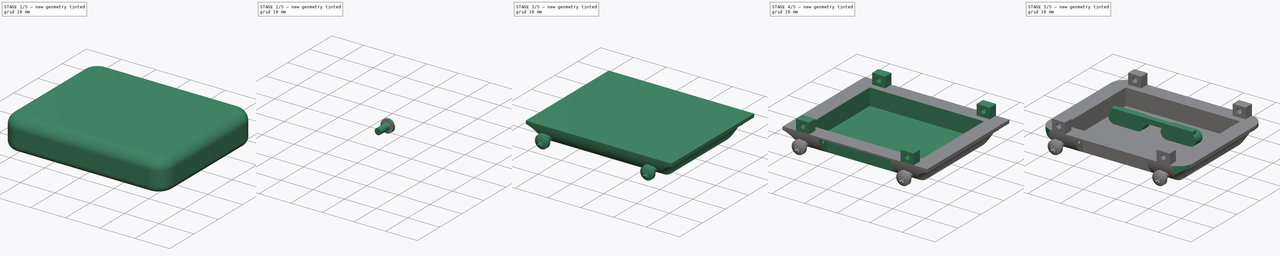
[diagram: build sequence overview — one tinted view per stage of 5, left to right]
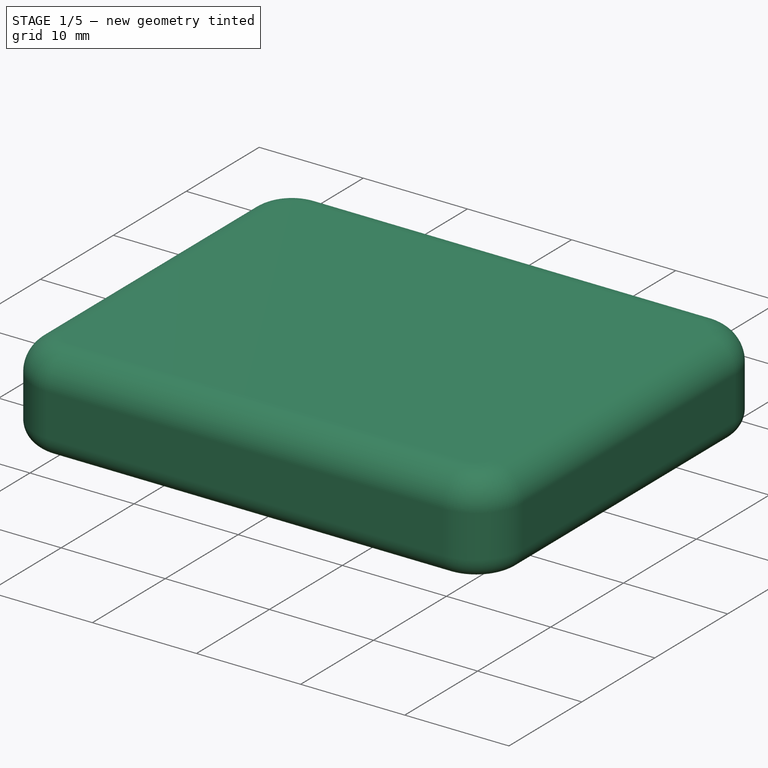
[diagram: stage 1 of 5 — iso view after this stage's code; geometry added in this stage tinted green]
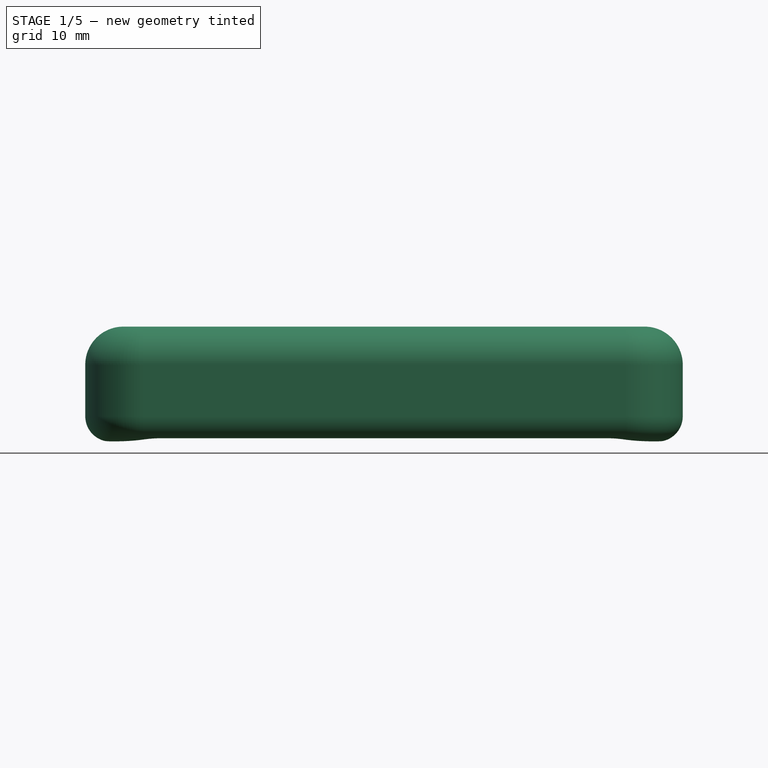
[diagram: stage 1 of 5 — front view after this stage's code; geometry added in this stage tinted green]
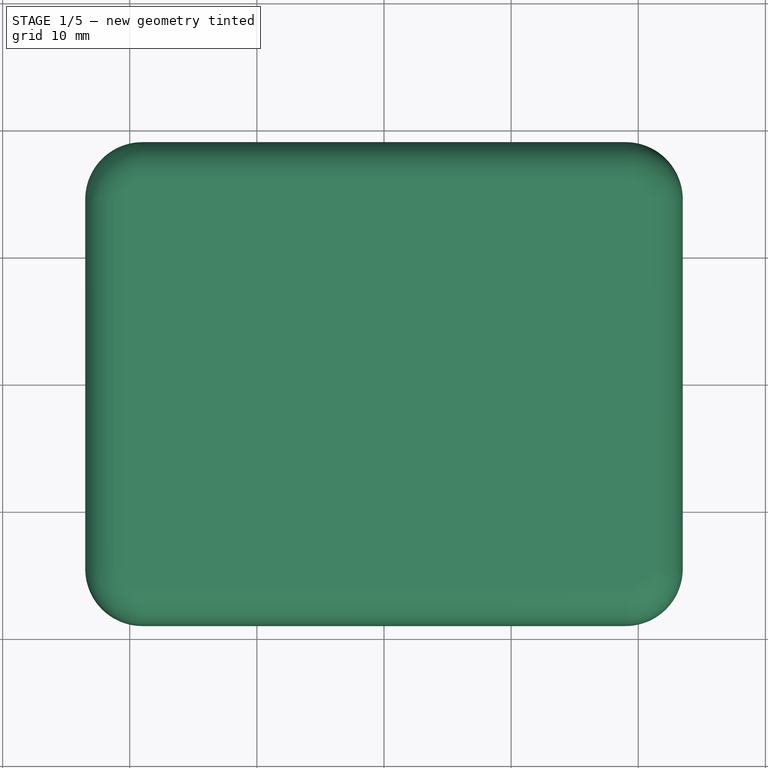
[diagram: stage 1 of 5 — top view after this stage's code; geometry added in this stage tinted green]
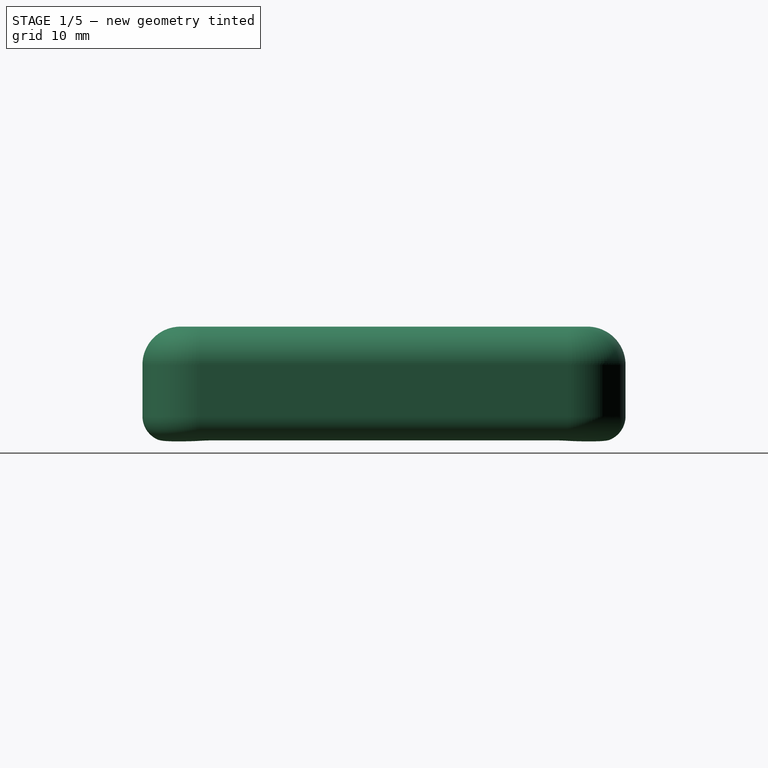
[diagram: stage 1 of 5 — right view after this stage's code; geometry added in this stage tinted green]
FCSTD DOCUMENT  (FreeCAD 0.21R33656 (Git))
Label: QPaper Smartwatch
License: All rights reserved
LicenseURL: http://en.wikipedia.org/wiki/All_rights_reserved
objects: Sketcher::SketchObject×16, Part::Feature×11, PartDesign::Pocket×11, App::Part×7, PartDesign::Pad×5, PartDesign::Mirrored×5, Part::FeaturePython×4, PartDesign::Fillet×3, PartDesign::SubShapeBinder×3, PartDesign::Body×3, App::DocumentObjectGroup×2, PartDesign::MultiTransform×1, Image::ImagePlane×1
note: 81 computed .brp shape members not serialized (recipe doc carries the construction recipe); baked Part::Feature solids carry a one-line shape summary decoded from their .brp

FEATURE [Part::Feature] Part__Feature  label="XS"
  Placement = pos=(-5.33584,-4.7419,-0.203296) rot=(0,1,0;1.5708rad)
  shape: bbox 37.3 x 1.6 x 31.8 mm, 11 faces (baked)
FEATURE [Part::Feature] Part__Feature001  label="PCB"
  Placement = pos=(0,-6.3,0) rot=(0.707107,0,0.707107;3.14159rad)
  shape: bbox 42.81 x 3.2 x 35.3 mm, 50 faces (baked)
FEATURE [Part::Feature] Part__Feature002  label="PCB"
  Placement = pos=(0,-6.3,0) rot=(0.707107,0,0.707107;3.14159rad)
  shape: bbox 8.8 x 3 x 7.6 mm, 19 faces (baked)
FEATURE [App::Part] PCB
  Group = -> [Part__Feature001,Part__Feature002]
  Origin = -> Origin
  Placement = pos=(-0.509713,0.374059,-0.227708) rot=(0,0,1;0rad)
FEATURE [App::Part] __A_ASM  label="T-Wrist E-Paper"
  Group = -> [Part__Feature,PCB]
  Origin = -> Origin001
  Placement = pos=(0.432902,0.296704,5.13057) rot=(1,0,0;1.5708rad)
FEATURE [Sketcher::SketchObject] Sketch
  FullyConstrained = true
  MapMode = 5
  Support = -> [XY_Plane003]
  sketch-geometry (13):
    g0: LineSegment StartX=-23.5 StartY=14.5 StartZ=0 EndX=-23.5 EndY=-14.5 EndZ=0
    g1: LineSegment StartX=-19 StartY=-19 StartZ=0 EndX=19 EndY=-19 EndZ=0
    g2: LineSegment StartX=23.5 StartY=-14.5 StartZ=0 EndX=23.5 EndY=14.5 EndZ=0
    g3: LineSegment StartX=19 StartY=19 StartZ=0 EndX=-19 EndY=19 EndZ=0
    g4: GeomPoint X=0 Y=0 Z=0
    g5: ArcOfCircle CenterX=-19 CenterY=14.5 CenterZ=0 NormalX=0 NormalY=0 NormalZ=1 AngleXU=0 Radius=4.5 StartAngle=1.5708 EndAngle=3.14159
    g6: GeomPoint X=-23.5 Y=19 Z=0
    g7: ArcOfCircle CenterX=19 CenterY=14.5 CenterZ=0 NormalX=0 NormalY=0 NormalZ=1 AngleXU=0 Radius=4.5 StartAngle=1e-16 EndAngle=1.5708
    g8: GeomPoint X=23.5 Y=19 Z=0
    g9: ArcOfCircle CenterX=19 CenterY=-14.5 CenterZ=0 NormalX=0 NormalY=0 NormalZ=1 AngleXU=0 Radius=4.5 StartAngle=4.71239 EndAngle=6.28319
    g10: GeomPoint X=23.5 Y=-19 Z=0
    g11: ArcOfCircle CenterX=-19 CenterY=-14.5 CenterZ=0 NormalX=0 NormalY=0 NormalZ=1 AngleXU=0 Radius=4.5 StartAngle=3.14159 EndAngle=4.71239
    g12: GeomPoint X=-23.5 Y=-19 Z=0
  constraints (28):
    c: Horizontal(g1)
    c: Horizontal(g3)
    c: Vertical(g0)
    c: Vertical(g2)
    c: Symmetric(g10,g6,g4)
    c: Coincident(g4,g-1)
    c: Distance(g8,g6) = 47
    c: Distance(g12,g6) = 38
    c: PointOnObject(g6,g0)
    c: PointOnObject(g6,g3)
    c: Tangent(g0,g5) = -1.5708
    c: Tangent(g3,g5) = -1.5708
    c: PointOnObject(g8,g2)
    c: PointOnObject(g8,g3)
    c: Tangent(g2,g7) = -1.5708
    c: Tangent(g3,g7) = -1.5708
    c: PointOnObject(g10,g1)
    c: PointOnObject(g10,g2)
    c: Tangent(g1,g9) = -1.5708
    c: Tangent(g2,g9) = -1.5708
    c: PointOnObject(g12,g0)
    c: PointOnObject(g12,g1)
    c: Tangent(g0,g11) = -1.5708
    c: Tangent(g1,g11) = -1.5708
    c: Equal(g5,g11)
    c: Equal(g5,g9)
    c: Equal(g5,g7)
    c: Radius(g5) = 4.5
FEATURE [PartDesign::Pad] Pad
  Direction = (0,0,1)
  Length = 2.75
  Length2 = 6.3
  Profile = -> Sketch
  ReferenceAxis = -> Sketch [N_Axis]
  Refine = true
  Type = 4
FEATURE [PartDesign::Fillet] Fillet
  Base = -> Pad [Face10]
  BaseFeature = -> Pad
  Radius = 3
  Refine = true
  SupportTransform = false
  UseAllEdges = false
FEATURE [PartDesign::Fillet] Fillet001
  Base = -> Fillet [Face4]
  BaseFeature = -> Fillet
  Radius = 2
  Refine = true
  SupportTransform = false
  UseAllEdges = false
FEATURE [Sketcher::SketchObject] Sketch001
  FullyConstrained = true
  MapMode = 5
  Support = -> [XY_Plane003]
  sketch-geometry (13):
    g0: LineSegment StartX=-22.125 StartY=13.5 StartZ=0 EndX=-22.125 EndY=-13.5 EndZ=0
    g1: LineSegment StartX=-17.625 StartY=-18 StartZ=0 EndX=17.625 EndY=-18 EndZ=0
    g2: LineSegment StartX=22.125 StartY=-13.5 StartZ=0 EndX=22.125 EndY=13.5 EndZ=0
    g3: LineSegment StartX=17.625 StartY=18 StartZ=0 EndX=-17.625 EndY=18 EndZ=0
    g4: GeomPoint X=0 Y=0 Z=0
    g5: ArcOfCircle CenterX=-17.625 CenterY=13.5 CenterZ=0 NormalX=0 NormalY=0 NormalZ=1 AngleXU=0 Radius=4.5 StartAngle=1.5708 EndAngle=3.14159
    g6: GeomPoint X=-22.125 Y=18 Z=0
    g7: ArcOfCircle CenterX=-17.625 CenterY=-13.5 CenterZ=0 NormalX=0 NormalY=0 NormalZ=1 AngleXU=0 Radius=4.5 StartAngle=3.14159 EndAngle=4.71239
    g8: GeomPoint X=-22.125 Y=-18 Z=0
    g9: ArcOfCircle CenterX=17.625 CenterY=-13.5 CenterZ=0 NormalX=0 NormalY=0 NormalZ=1 AngleXU=0 Radius=4.5 StartAngle=4.71239 EndAngle=6.28319
    g10: GeomPoint X=22.125 Y=-18 Z=0
    g11: ArcOfCircle CenterX=17.625 CenterY=13.5 CenterZ=0 NormalX=0 NormalY=0 NormalZ=1 AngleXU=0 Radius=4.5 StartAngle=0 EndAngle=1.5708
    g12: GeomPoint X=22.125 Y=18 Z=0
  constraints (28):
    c: Horizontal(g1)
    c: Horizontal(g3)
    c: Vertical(g0)
    c: Vertical(g2)
    c: Symmetric(g10,g6,g4)
    c: Coincident(g4,g-1)
    c: Distance(g12,g6) = 44.25
    c: Distance(g8,g6) = 36
    c: PointOnObject(g6,g0)
    c: PointOnObject(g6,g3)
    c: Tangent(g0,g5) = -1.5708
    c: Tangent(g3,g5) = -1.5708
    c: PointOnObject(g8,g0)
    c: PointOnObject(g8,g1)
    c: Tangent(g0,g7) = -1.5708
    c: Tangent(g1,g7) = -1.5708
    c: PointOnObject(g10,g1)
    c: PointOnObject(g10,g2)
    c: Tangent(g1,g9) = -1.5708
    c: Tangent(g2,g9) = -1.5708
    c: PointOnObject(g12,g2)
    c: PointOnObject(g12,g3)
    c: Tangent(g2,g11) = -1.5708
    c: Tangent(g3,g11) = -1.5708
    c: Equal(g5,g7)
    c: Equal(g5,g9)
    c: Equal(g5,g11)
    c: Radius(g5) = 4.5
FEATURE [PartDesign::Pocket] Pocket
  BaseFeature = -> Fillet001
  Direction = (0,0,-1)
  Length = 8
  Length2 = 1.25
  Profile = -> Sketch001
  ReferenceAxis = -> Sketch001 [N_Axis]
  Refine = true
  Type = 4
FEATURE [Sketcher::SketchObject] Sketch002
  FullyConstrained = true
  MapMode = 5
  Support = -> [XY_Plane003]
  sketch-geometry (5):
    g0: LineSegment StartX=-21.35 StartY=16.1 StartZ=0 EndX=-21.35 EndY=-16.1 EndZ=0
    g1: LineSegment StartX=-21.35 StartY=-16.1 StartZ=0 EndX=21.35 EndY=-16.1 EndZ=0
    g2: LineSegment StartX=21.35 StartY=-16.1 StartZ=0 EndX=21.35 EndY=16.1 EndZ=0
    g3: LineSegment StartX=21.35 StartY=16.1 StartZ=0 EndX=-21.35 EndY=16.1 EndZ=0
    g4: GeomPoint X=0 Y=0 Z=0
  constraints (12):
    c: Coincident(g0,g1)
    c: Coincident(g1,g2)
    c: Coincident(g2,g3)
    c: Coincident(g3,g0)
    c: Horizontal(g1)
    c: Horizontal(g3)
    c: Vertical(g0)
    c: Vertical(g2)
    c: Symmetric(g1,g0,g4)
    c: Coincident(g4,g-1)
    c: Distance(g3) = 42.7
    c: Distance(g0) = 32.2
FEATURE [PartDesign::Pocket] Pocket001
  BaseFeature = -> Pocket
  Direction = (0,0,-1)
  Length = 2.15
  Length2 = 5
  Profile = -> Sketch002
  ReferenceAxis = -> Sketch002 [N_Axis]
  Refine = true
  Reversed = true
  Type = 0
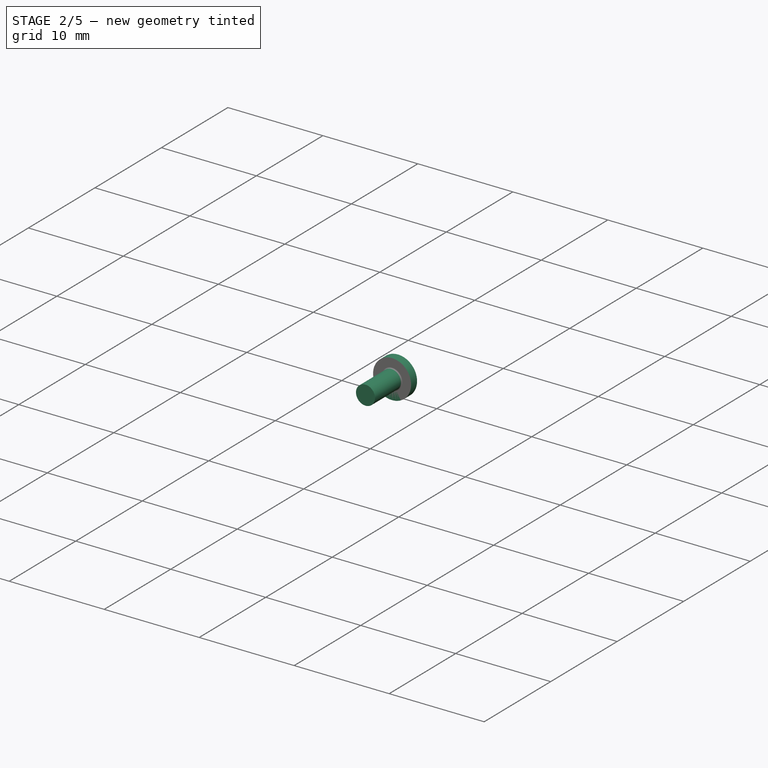
[diagram: stage 2 of 5 — iso view after this stage's code; geometry added in this stage tinted green]
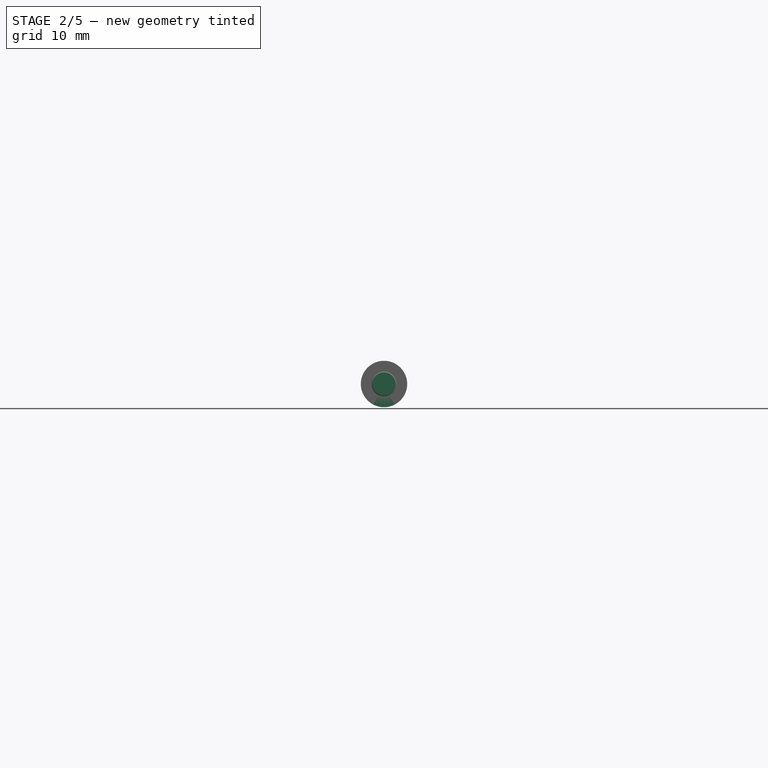
[diagram: stage 2 of 5 — front view after this stage's code; geometry added in this stage tinted green]
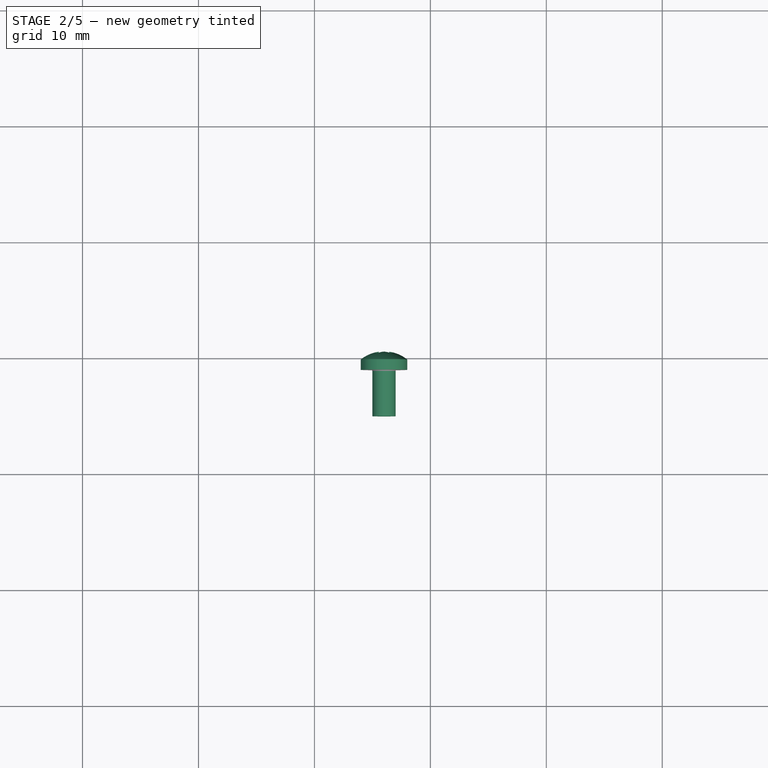
[diagram: stage 2 of 5 — top view after this stage's code; geometry added in this stage tinted green]
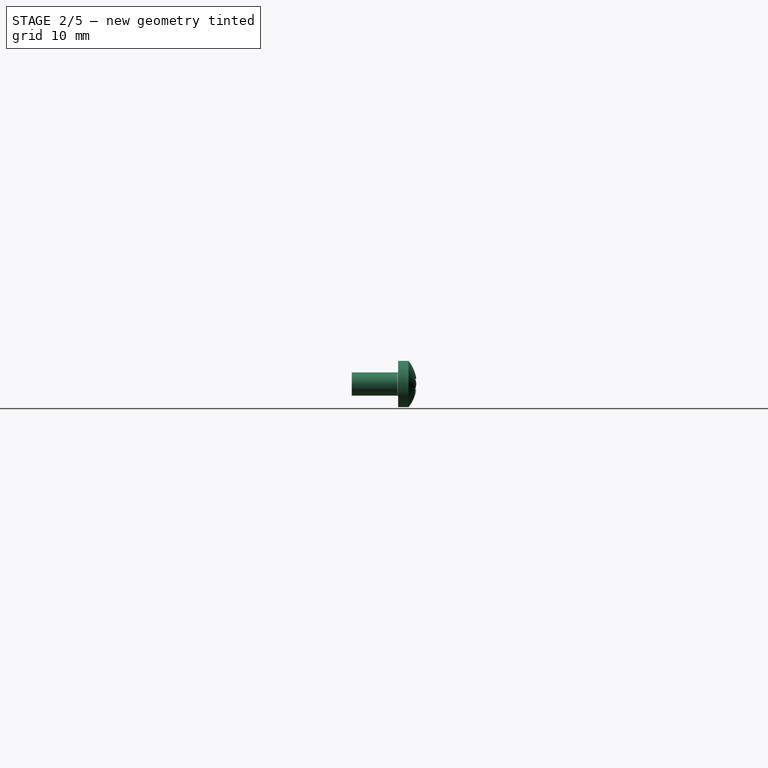
[diagram: stage 2 of 5 — right view after this stage's code; geometry added in this stage tinted green]
FEATURE [Sketcher::SketchObject] Sketch003
  FullyConstrained = true
  MapMode = 5
  Support = -> [XY_Plane003]
  sketch-geometry (5):
    g0: LineSegment StartX=-19.5 StartY=14.5 StartZ=0 EndX=-19.5 EndY=-14.5 EndZ=0
    g1: LineSegment StartX=-19.5 StartY=-14.5 StartZ=0 EndX=9.5 EndY=-14.5 EndZ=0
    g2: LineSegment StartX=9.5 StartY=-14.5 StartZ=0 EndX=9.5 EndY=14.5 EndZ=0
    g3: LineSegment StartX=9.5 StartY=14.5 StartZ=0 EndX=-19.5 EndY=14.5 EndZ=0
    g4: GeomPoint X=-5 Y=0 Z=0
  constraints (13):
    c: Coincident(g0,g1)
    c: Coincident(g1,g2)
    c: Coincident(g2,g3)
    c: Coincident(g3,g0)
    c: Horizontal(g1)
    c: Horizontal(g3)
    c: Vertical(g0)
    c: Vertical(g2)
    c: Symmetric(g1,g0,g4)
    c: PointOnObject(g4,g-1)
    c: Distance(g-1,g4) = 5
    c: Distance(g3) = 29
    c: Equal(g3,g0)
FEATURE [PartDesign::Pocket] Pocket002
  BaseFeature = -> Pocket001
  Direction = (0,0,-1)
  Length = 5
  Length2 = 5
  Profile = -> Sketch003
  ReferenceAxis = -> Sketch003 [N_Axis]
  Refine = true
  Reversed = true
  Type = 1
FEATURE [Sketcher::SketchObject] Sketch004
  FullyConstrained = true
  MapMode = 5
  Placement = pos=(0,0,0) rot=(1,0,0;1.5708rad)
  Support = -> [XZ_Plane003]
  sketch-geometry (9):
    g0: LineSegment StartX=-4.5 StartY=-2.9 StartZ=0 EndX=-4.5 EndY=-6.9 EndZ=0
    g1: LineSegment StartX=-4.5 StartY=-6.9 StartZ=0 EndX=4.5 EndY=-6.9 EndZ=0
    g2: LineSegment StartX=4.5 StartY=-6.9 StartZ=0 EndX=4.5 EndY=-2.9 EndZ=0
    g3: LineSegment StartX=3.5 StartY=-1.9 StartZ=0 EndX=-3.5 EndY=-1.9 EndZ=0
    g4: GeomPoint X=0 Y=-4.4 Z=0
    g5: ArcOfCircle CenterX=-3.5 CenterY=-2.9 CenterZ=0 NormalX=0 NormalY=0 NormalZ=1 AngleXU=0 Radius=1 StartAngle=1.5708 EndAngle=3.14159
    g6: GeomPoint X=-4.5 Y=-1.9 Z=0
    g7: ArcOfCircle CenterX=3.5 CenterY=-2.9 CenterZ=0 NormalX=0 NormalY=0 NormalZ=1 AngleXU=0 Radius=1 StartAngle=1e-16 EndAngle=1.5708
    g8: GeomPoint X=4.5 Y=-1.9 Z=0
  constraints (21):
    c: Coincident(g0,g1)
    c: Coincident(g1,g2)
    c: Horizontal(g1)
    c: Horizontal(g3)
    c: Vertical(g0)
    c: Vertical(g2)
    c: Symmetric(g1,g6,g4)
    c: PointOnObject(g4,g-2)
    c: PointOnObject(g6,g0)
    c: PointOnObject(g6,g3)
    c: Tangent(g0,g5) = -1.5708
    c: Tangent(g3,g5) = -1.5708
    c: PointOnObject(g8,g2)
    c: PointOnObject(g8,g3)
    c: Tangent(g2,g7) = -1.5708
    c: Tangent(g3,g7) = -1.5708
    c: Equal(g5,g7)
    c: Radius(g5) = 1
    c: Distance(g1) = 9
    c: DistanceY(g0,g3) = 5
    c: DistanceY(g3,g-1) = 1.9
FEATURE [PartDesign::Pocket] Pocket003
  BaseFeature = -> Pocket002
  Direction = (0,1,2e-16)
  Length = 5
  Length2 = 5
  Profile = -> Sketch004
  ReferenceAxis = -> Sketch004 [N_Axis]
  Refine = true
  Reversed = true
  Type = 1
FEATURE [Sketcher::SketchObject] Sketch006
  FullyConstrained = true
  MapMode = 5
  Placement = pos=(0,0,0) rot=(1,0,0;1.5708rad)
  Support = -> [XZ_Plane003]
  sketch-geometry (4):
    g0: ArcOfCircle CenterX=-11.5 CenterY=-1.6 CenterZ=0 NormalX=0 NormalY=0 NormalZ=1 AngleXU=0 Radius=2 StartAngle=1.5708 EndAngle=4.71239
    g1: ArcOfCircle CenterX=-4.5 CenterY=-1.6 CenterZ=0 NormalX=0 NormalY=0 NormalZ=1 AngleXU=0 Radius=2 StartAngle=4.71239 EndAngle=7.85398
    g2: LineSegment StartX=-11.5 StartY=-3.6 StartZ=0 EndX=-4.5 EndY=-3.6 EndZ=0
    g3: LineSegment StartX=-4.5 StartY=0.4 StartZ=0 EndX=-11.5 EndY=0.4 EndZ=0
  constraints (10):
    c: Tangent(g0,g2) = -1.5708
    c: Tangent(g2,g1) = -1.5708
    c: Tangent(g1,g3) = -1.5708
    c: Tangent(g3,g0) = -1.5708
    c: Equal(g0,g1)
    c: Horizontal(g2)
    c: Distance(g0,g1) = 7
    c: Radius(g1) = 2
    c: DistanceX(g1,g-1) = 4.5
    c: DistanceY(g1,g-1) = 1.6
FEATURE [PartDesign::Pocket] Pocket005
  BaseFeature = -> Pocket003
  Direction = (0,1,2e-16)
  Length = 5
  Length2 = 5
  Profile = -> Sketch006
  ReferenceAxis = -> Sketch006 [N_Axis]
  Refine = true
  Type = 1
FEATURE [PartDesign::Mirrored] Mirrored
  BaseFeature = -> Pocket005
  MirrorPlane = -> Sketch006 [V_Axis]
  Originals = -> [Pocket005]
  Refine = true
FEATURE [Part::Feature] Part__Feature003  label="PebbleSolid-20130102"
  shape: bbox 1.8 x 1.8 x 24.2 mm, 38 faces (baked)
FEATURE [Part::Feature] Part__Feature004  label="PebbleSolid-20130102"
  shape: bbox 128.4 x 4.871 x 23.51 mm, 243 faces (baked)
FEATURE [App::Part] Strap_Lower  label="Strap Lower"
  Group = -> [Part__Feature003,Part__Feature004]
  Origin = -> Origin009
  Placement = pos=(2e-15,8.5,-5) rot=(-0.57735,0.57735,0.57735;4.18879rad)
FEATURE [Part::Feature] Part__Feature005  label="PebbleSolid-20130102"
  shape: bbox 1.8 x 1.8 x 24.2 mm, 38 faces (baked)
FEATURE [Part::Feature] Part__Feature006  label="PebbleSolid-20130102"
  shape: bbox 10 x 9.536 x 26.64 mm, 34 faces (baked)
FEATURE [Part::Feature] Part__Feature007  label="PebbleSolid-20130102"
  shape: bbox 17.22 x 7.996 x 25.01 mm, 81 faces (baked)
FEATURE [Part::Feature] Part__Feature008  label="PebbleSolid-20130102"
  shape: bbox 73.14 x 6.141 x 22 mm, 51 faces (baked)
FEATURE [Part::Feature] Part__Feature009  label="PebbleSolid-20130102"
  shape: bbox 16.82 x 4.419 x 3 mm, 46 faces (baked)
FEATURE [Part::Feature] Part__Feature010  label="PebbleSolid-20130102"
  shape: bbox 1.8 x 1.8 x 24.2 mm, 38 faces (baked)
FEATURE [App::Part] Strap_Upper  label="Strap Upper"
  Group = -> [Part__Feature005,Part__Feature006,Part__Feature007,Part__Feature008,Part__Feature009,Part__Feature010]
  Origin = -> Origin010
  Placement = pos=(-8e-16,-4,-5) rot=(-0.57735,0.57735,0.57735;4.18879rad)
FEATURE [Sketcher::SketchObject] Sketch017
  FullyConstrained = true
  MapMode = 5
  Placement = pos=(0,0,0) rot=(1,0,0;1.5708rad)
  Support = -> [XZ_Plane003]
  sketch-geometry (2):
    g0: Circle CenterX=16 CenterY=-3.5 CenterZ=0 NormalX=0 NormalY=0 NormalZ=1 AngleXU=0 Radius=1
    g1: Circle CenterX=-16 CenterY=-3.5 CenterZ=0 NormalX=0 NormalY=0 NormalZ=1 AngleXU=0 Radius=1
  constraints (5):
    c: Equal(g1,g0)
    c: Diameter(g1) = 2
    c: Symmetric(g1,g0,g-2)
    c: Distance(g1,g0) = 32
    c: DistanceY(g1,g-1) = 3.5
FEATURE [PartDesign::Pocket] Pocket012
  BaseFeature = -> Mirrored
  Direction = (0,1,2e-16)
  Length = 5
  Length2 = 5
  Midplane = true
  Profile = -> Sketch017
  ReferenceAxis = -> Sketch017 [N_Axis]
  Refine = true
  Type = 1
FEATURE [Part::FeaturePython] Screw003  label="M2x4-Screw"  # Fasteners workbench fastener (typed FeaturePython)
  Placement = pos=(16,19,-3.5) rot=(-1,0,0;1.5708rad)
  baseObject = -> Body [Edge21]
  diameter = 2
  invert = true
  leftHanded = false
  length = 1
  lengthCustom = 4
  matchOuter = false
  offset = 0
  thread = false
  type = 46
FEATURE [Image::ImagePlane] ImagePlane  label="Screen"
  Placement = pos=(-5,0.5,1.5) rot=(0,0,1;0rad)
  XSize = 26.6654
  YSize = 26.6654
FEATURE [App::DocumentObjectGroup] Group001  label="Fasteners"
  Group = -> [Screw,Screw001,Screw002,Screw003]
FEATURE [App::DocumentObjectGroup] Group  label="Reference Parts"
  Group = -> [__A_ASM,Strap_Lower,Strap_Upper,ImagePlane,Group001]
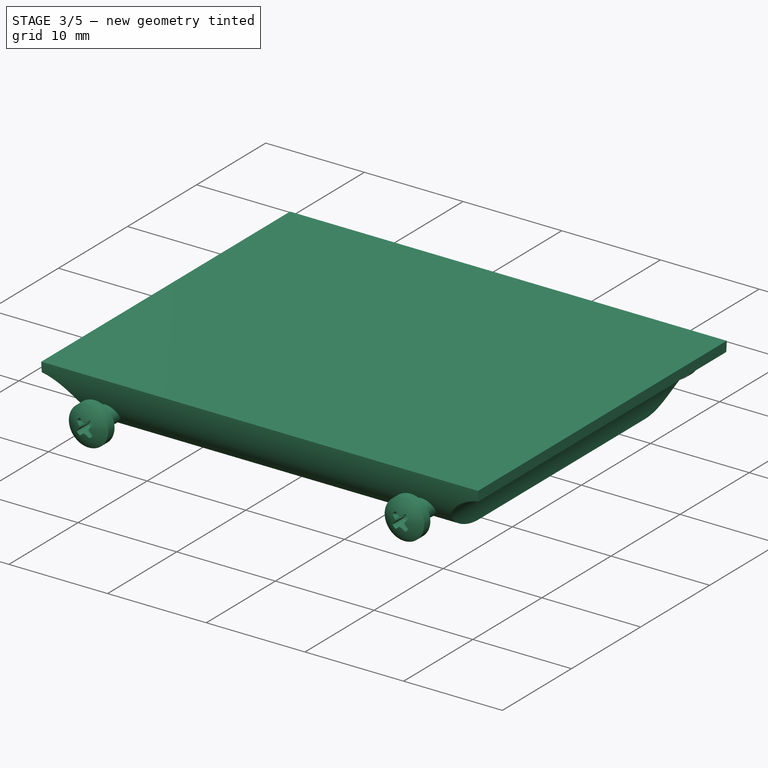
[diagram: stage 3 of 5 — iso view after this stage's code; geometry added in this stage tinted green]
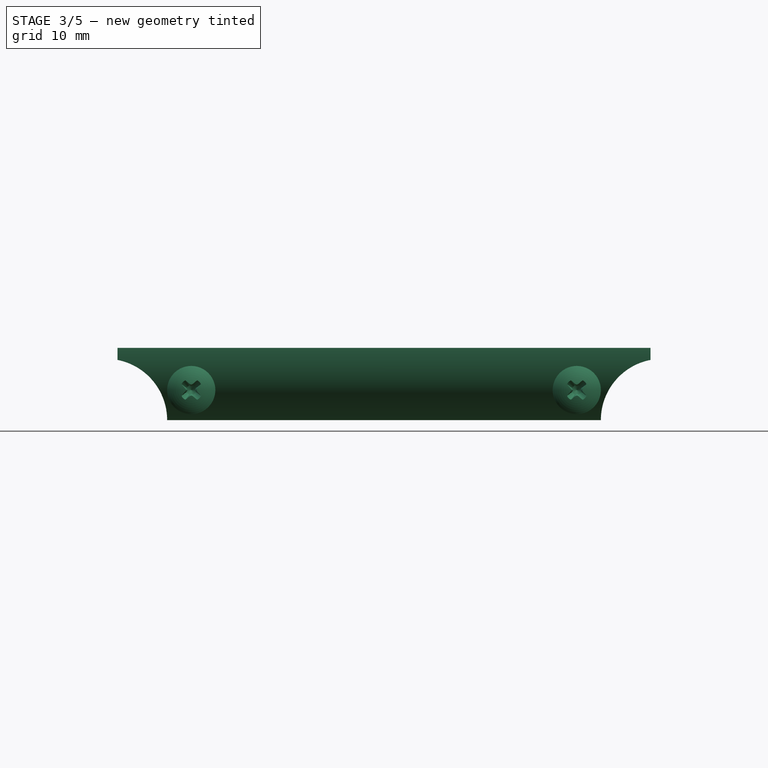
[diagram: stage 3 of 5 — front view after this stage's code; geometry added in this stage tinted green]
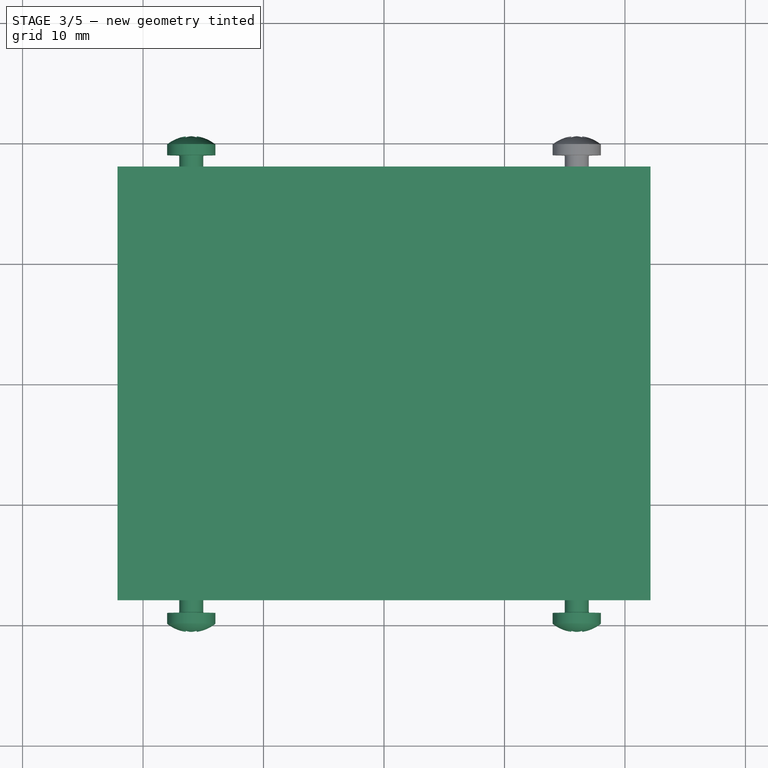
[diagram: stage 3 of 5 — top view after this stage's code; geometry added in this stage tinted green]
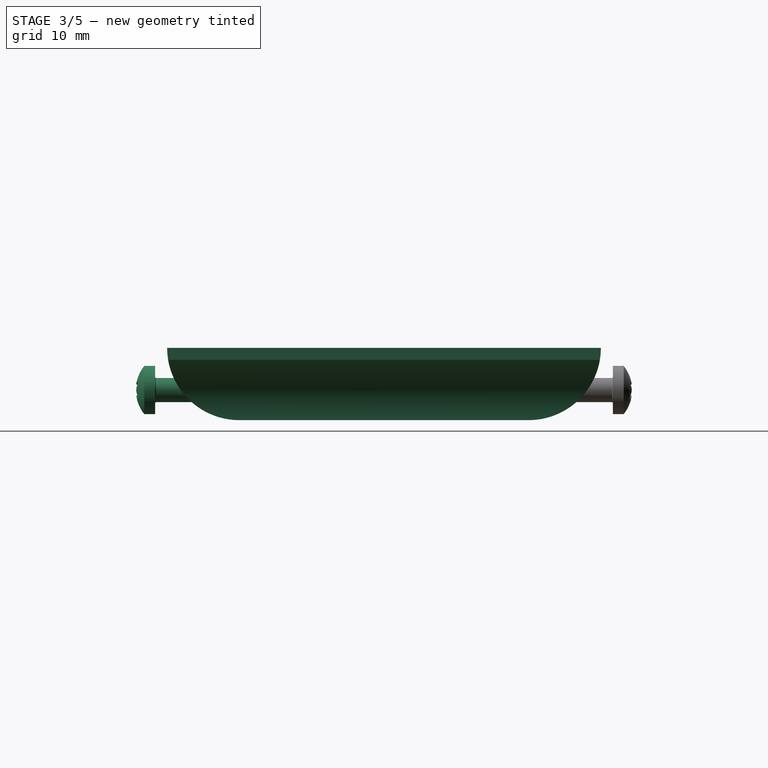
[diagram: stage 3 of 5 — right view after this stage's code; geometry added in this stage tinted green]
FEATURE [PartDesign::Body] Body001
  Group = -> [Sketch007,Binder,Pad001,Sketch008,Pad002,Mirrored001,Fillet002]
  Origin = -> Origin006
  Tip = -> Fillet002
FEATURE [App::Part] Part002  label="Buttons"
  Group = -> [Body001]
  Origin = -> Origin005
  Placement = pos=(0,16.75,0) rot=(0,0,1;0rad)
FEATURE [PartDesign::Pad] Pad003
  Direction = (0,-1,2e-16)
  Length = 36
  Length2 = 10
  Midplane = true
  Placement = pos=(0,0,0) rot=(1,0,0;1.5708rad)
  Profile = -> Sketch009
  ReferenceAxis = -> Sketch009 [N_Axis]
  Refine = true
  Type = 0
FEATURE [PartDesign::SubShapeBinder] Binder001
  BindCopyOnChange = 0
  BindMode = 0
  ClaimChildren = false
  Context = -> Part003 [Body002.Binder001.]
  Fuse = false
  MakeFace = true
  OffsetFill = false
  OffsetIntersection = false
  OffsetJoinType = 0
  OffsetOpenResult = false
  PartialLoad = false
  Refine = true
  Relative = true
  Support = -> [Part[Body.Pocket.Sketch001.]]
  _Version = 2
FEATURE [Sketcher::SketchObject] Sketch010
  ExternalGeometry = -> [Binder001]
  FullyConstrained = true
  MapMode = 5
  Support = -> [XY_Plane008]
  sketch-geometry (13):
    g0: ArcOfCircle CenterX=-17.625 CenterY=13.5 CenterZ=0 NormalX=0 NormalY=0 NormalZ=1 AngleXU=0 Radius=4.5 StartAngle=1.5708 EndAngle=3.14159
    g1: ArcOfCircle CenterX=17.625 CenterY=13.5 CenterZ=0 NormalX=0 NormalY=0 NormalZ=1 AngleXU=0 Radius=4.5 StartAngle=4e-16 EndAngle=1.5708
    g2: ArcOfCircle CenterX=17.625 CenterY=-13.5 CenterZ=0 NormalX=0 NormalY=0 NormalZ=1 AngleXU=0 Radius=4.5 StartAngle=4.71239 EndAngle=6.28319
    g3: ArcOfCircle CenterX=-17.625 CenterY=-13.5 CenterZ=0 NormalX=0 NormalY=0 NormalZ=1 AngleXU=0 Radius=4.5 StartAngle=3.14159 EndAngle=4.71239
    g4: LineSegment StartX=-22.125 StartY=13.5 StartZ=0 EndX=-22.125 EndY=-13.5 EndZ=0
    g5: LineSegment StartX=-17.625 StartY=-18 StartZ=0 EndX=17.625 EndY=-18 EndZ=0
    g6: LineSegment StartX=22.125 StartY=13.5 StartZ=0 EndX=22.125 EndY=-13.5 EndZ=0
    g7: LineSegment StartX=17.625 StartY=18 StartZ=0 EndX=-17.625 EndY=18 EndZ=0
    g8: LineSegment StartX=-35 StartY=35 StartZ=0 EndX=-35 EndY=-35 EndZ=0
    g9: LineSegment StartX=-35 StartY=-35 StartZ=0 EndX=35 EndY=-35 EndZ=0
    g10: LineSegment StartX=35 StartY=-35 StartZ=0 EndX=35 EndY=35 EndZ=0
    g11: LineSegment StartX=35 StartY=35 StartZ=0 EndX=-35 EndY=35 EndZ=0
    g12: GeomPoint X=0 Y=0 Z=0
  constraints (32):
    c: Coincident(g0,g-10)
    c: Coincident(g0,g-10)
    c: Coincident(g0,g-10)
    c: Coincident(g1,g-3)
    c: Coincident(g1,g-4)
    c: Coincident(g1,g-5)
    c: Coincident(g2,g-6)
    c: Coincident(g2,g-6)
    c: Coincident(g2,g-7)
    c: Coincident(g3,g-8)
    c: Coincident(g3,g-9)
    c: Coincident(g3,g-8)
    c: Coincident(g4,g0)
    c: Coincident(g4,g3)
    c: Coincident(g5,g3)
    c: Coincident(g5,g2)
    c: Coincident(g6,g1)
    c: Coincident(g6,g2)
    c: Coincident(g7,g1)
    c: Coincident(g7,g0)
    c: Coincident(g8,g9)
    c: Coincident(g9,g10)
    c: Coincident(g10,g11)
    c: Coincident(g11,g8)
    c: Horizontal(g9)
    c: Horizontal(g11)
    c: Vertical(g8)
    c: Vertical(g10)
    c: Symmetric(g9,g8,g12)
    c: Coincident(g12,g-1)
    c: Distance(g11) = 70
    c: Equal(g11,g8)
FEATURE [Sketcher::SketchObject] Sketch013
  FullyConstrained = true
  MapMode = 5
  Placement = pos=(0,0,0) rot=(0.57735,0.57735,0.57735;2.0944rad)
  Support = -> [YZ_Plane008]
  sketch-geometry (6):
    g0: ArcOfCircle CenterX=-12 CenterY=0 CenterZ=0 NormalX=0 NormalY=0 NormalZ=1 AngleXU=0 Radius=6 StartAngle=3.14159 EndAngle=4.71239
    g1: ArcOfCircle CenterX=12 CenterY=0 CenterZ=0 NormalX=0 NormalY=0 NormalZ=1 AngleXU=0 Radius=6 StartAngle=4.71239 EndAngle=6.28319
    g2: LineSegment StartX=-18 StartY=7e-16 StartZ=0 EndX=-18 EndY=-6 EndZ=0
    g3: LineSegment StartX=-12 StartY=-6 StartZ=0 EndX=-18 EndY=-6 EndZ=0
    g4: LineSegment StartX=18 StartY=-1.5e-15 StartZ=0 EndX=18 EndY=-6 EndZ=0
    g5: LineSegment StartX=12 StartY=-6 StartZ=0 EndX=18 EndY=-6 EndZ=0
  constraints (19):
    c: PointOnObject(g0,g-1)
    c: PointOnObject(g0,g-1)
    c: Vertical(g0,g0)
    c: PointOnObject(g1,g-1)
    c: Vertical(g1,g1)
    c: PointOnObject(g1,g-1)
    c: Symmetric(g1,g0,g-2)
    c: Distance(g0,g1) = 36
    c: DistanceY(g0,g-1) = 6
    c: Coincident(g2,g0)
    c: Vertical(g2)
    c: Coincident(g3,g0)
    c: Coincident(g3,g2)
    c: Horizontal(g3)
    c: Coincident(g4,g1)
    c: Vertical(g4)
    c: Coincident(g5,g1)
    c: Coincident(g5,g4)
    c: Horizontal(g5)
FEATURE [PartDesign::Pocket] Pocket008
  BaseFeature = -> Pad003
  Direction = (-1,2e-16,-3e-16)
  Length = 5
  Length2 = 5
  Midplane = true
  Placement = pos=(0,0,0) rot=(1,0,0;1.5708rad)
  Profile = -> Sketch013
  ReferenceAxis = -> Sketch013 [N_Axis]
  Refine = true
  Type = 1
FEATURE [PartDesign::Body] Body002
  Group = -> [Sketch009,Pad003,Binder001,Sketch010,Sketch013,Pocket008,Sketch014,Pocket009,Sketch015,Pocket010,Sketch016,Pocket011,Mirrored004,Binder002,Sketch018,Pad004,MultiTransform,Mirrored005,Mirrored006,Pocket013]
  Origin = -> Origin008
  Tip = -> Pocket013
FEATURE [App::Part] Part003  label="Bottom Plate"
  Group = -> [Body002]
  Origin = -> Origin007
  Placement = pos=(0,0,-5.25) rot=(0,0,1;0rad)
FEATURE [Part::FeaturePython] Screw  label="M2x4-Screw"  # Fasteners workbench fastener (typed FeaturePython)
  Placement = pos=(-16,-19,-3.5) rot=(1,0,0;1.5708rad)
  baseObject = -> Body [Edge71]
  diameter = 2
  invert = false
  leftHanded = false
  length = 1
  lengthCustom = 4
  matchOuter = false
  offset = 0
  thread = false
  type = 46
FEATURE [Part::FeaturePython] Screw001  label="M2x4-Screw"  # Fasteners workbench fastener (typed FeaturePython)
  Placement = pos=(16,-19,-3.5) rot=(1,0,0;1.5708rad)
  baseObject = -> Body [Edge80]
  diameter = 2
  invert = false
  leftHanded = false
  length = 1
  lengthCustom = 4
  matchOuter = false
  offset = 0
  thread = false
  type = 46
FEATURE [Part::FeaturePython] Screw002  label="M2x4-Screw"  # Fasteners workbench fastener (typed FeaturePython)
  Placement = pos=(-16,19,-3.5) rot=(-1,0,0;1.5708rad)
  baseObject = -> Body [Edge24]
  diameter = 2
  invert = true
  leftHanded = false
  length = 1
  lengthCustom = 4
  matchOuter = false
  offset = 0
  thread = false
  type = 46
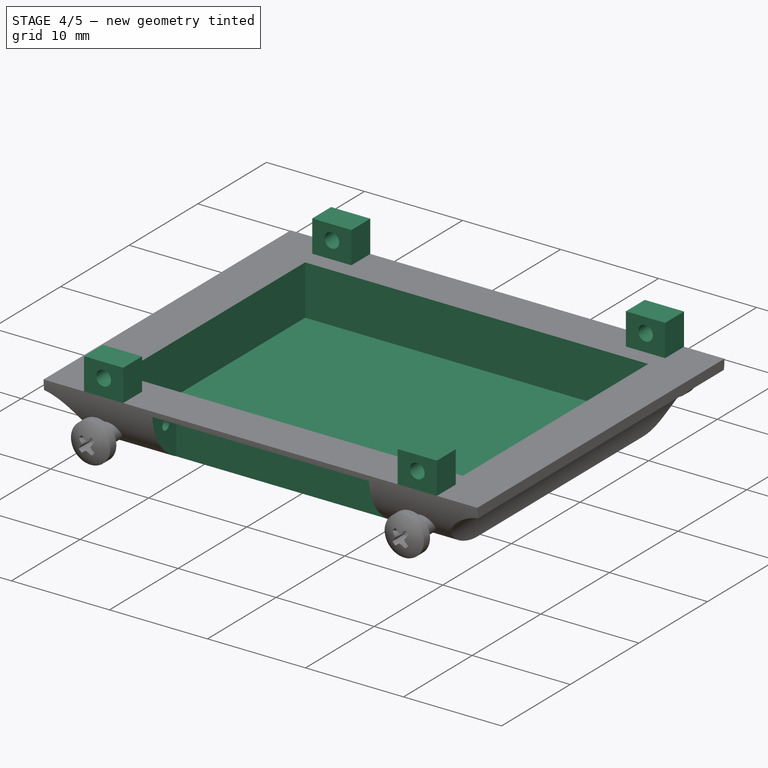
[diagram: stage 4 of 5 — iso view after this stage's code; geometry added in this stage tinted green]
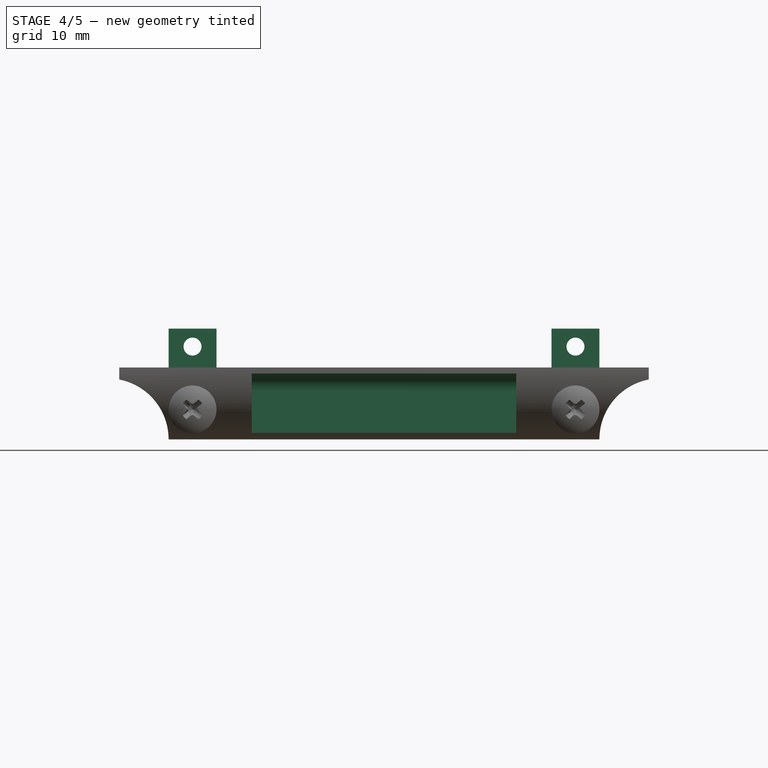
[diagram: stage 4 of 5 — front view after this stage's code; geometry added in this stage tinted green]
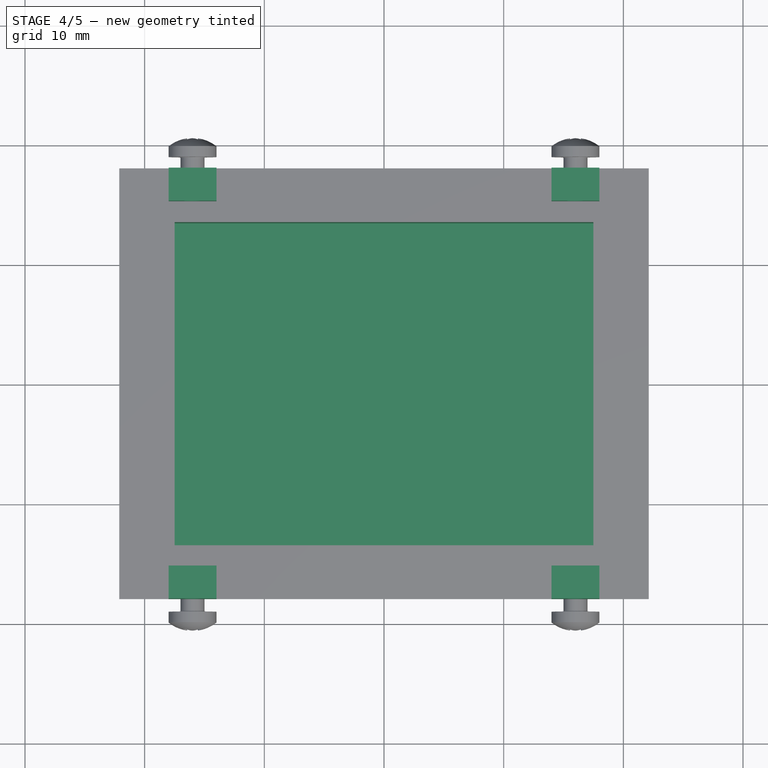
[diagram: stage 4 of 5 — top view after this stage's code; geometry added in this stage tinted green]
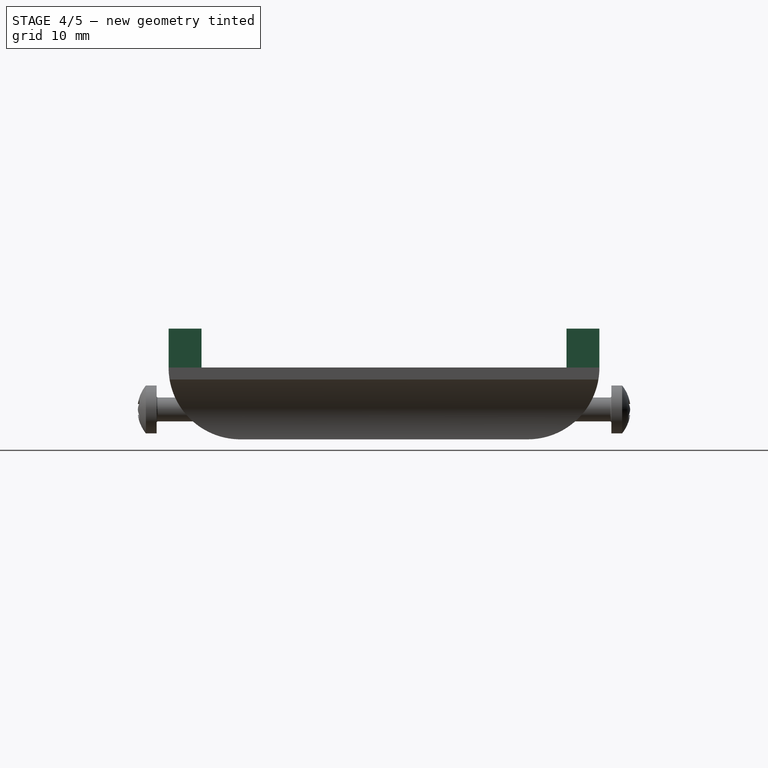
[diagram: stage 4 of 5 — right view after this stage's code; geometry added in this stage tinted green]
FEATURE [Sketcher::SketchObject] Sketch014
  FullyConstrained = true
  MapMode = 5
  Placement = pos=(0,0,0) rot=(0.57735,0.57735,0.57735;2.0944rad)
  Support = -> [YZ_Plane008]
  sketch-geometry (4):
    g0: LineSegment StartX=-13.5 StartY=0 StartZ=0 EndX=13.5 EndY=0 EndZ=0
    g1: LineSegment StartX=13.5 StartY=0 StartZ=0 EndX=13.5 EndY=-5.1 EndZ=0
    g2: LineSegment StartX=13.5 StartY=-5.1 StartZ=0 EndX=-13.5 EndY=-5.1 EndZ=0
    g3: LineSegment StartX=-13.5 StartY=-5.1 StartZ=0 EndX=-13.5 EndY=0 EndZ=0
  constraints (11):
    c: Coincident(g0,g1)
    c: Coincident(g1,g2)
    c: Coincident(g2,g3)
    c: Coincident(g3,g0)
    c: Horizontal(g2)
    c: Vertical(g1)
    c: Vertical(g3)
    c: PointOnObject(g0,g-1)
    c: Symmetric(g0,g0,g-2)
    c: Distance(g0) = 27
    c: Distance(g3) = 5.1
FEATURE [PartDesign::Pocket] Pocket009
  BaseFeature = -> Pocket008
  Direction = (-1,2e-16,-3e-16)
  Length = 35
  Length2 = 5
  Midplane = true
  Placement = pos=(0,0,0) rot=(1,0,0;1.5708rad)
  Profile = -> Sketch014
  ReferenceAxis = -> Sketch014 [N_Axis]
  Refine = true
  Type = 0
FEATURE [Sketcher::SketchObject] Sketch015
  FullyConstrained = true
  MapMode = 5
  Placement = pos=(0,0,0) rot=(0.57735,0.57735,0.57735;2.0944rad)
  Support = -> [YZ_Plane008]
  sketch-geometry (6):
    g0: LineSegment StartX=16 StartY=-0.5 StartZ=0 EndX=18 EndY=-0.5 EndZ=0
    g1: LineSegment StartX=18 StartY=-0.5 StartZ=0 EndX=18 EndY=-6 EndZ=0
    g2: LineSegment StartX=18 StartY=-6 StartZ=0 EndX=14.5 EndY=-6 EndZ=0
    g3: LineSegment StartX=14.5 StartY=-6 StartZ=0 EndX=14.5 EndY=-2 EndZ=0
    g4: ArcOfCircle CenterX=16 CenterY=-2 CenterZ=0 NormalX=0 NormalY=0 NormalZ=1 AngleXU=0 Radius=1.5 StartAngle=1.5708 EndAngle=3.14159
    g5: GeomPoint X=14.5 Y=-0.5 Z=0
  constraints (16):
    c: Coincident(g0,g1)
    c: Coincident(g1,g2)
    c: Coincident(g2,g3)
    c: Horizontal(g0)
    c: Horizontal(g2)
    c: Vertical(g1)
    c: Vertical(g3)
    c: DistanceX(g-1,g0) = 18
    c: DistanceY(g2,g-1) = 6
    c: Distance(g0,g5) = 3.5
    c: Distance(g3,g5) = 5.5
    c: PointOnObject(g5,g0)
    c: PointOnObject(g5,g3)
    c: Tangent(g0,g4) = 1.5708
    c: Tangent(g3,g4) = 1.5708
    c: Radius(g4) = 1.5
FEATURE [PartDesign::Pocket] Pocket010
  BaseFeature = -> Pocket009
  Direction = (-1,2e-16,-3e-16)
  Length = 22.1
  Length2 = 5
  Midplane = true
  Placement = pos=(0,0,0) rot=(1,0,0;1.5708rad)
  Profile = -> Sketch015
  ReferenceAxis = -> Sketch015 [N_Axis]
  Refine = true
  Type = 0
FEATURE [Sketcher::SketchObject] Sketch016
  ExternalGeometry = -> [Sketch015]
  FullyConstrained = true
  MapMode = 5
  Placement = pos=(0,0,0) rot=(0.57735,0.57735,0.57735;2.0944rad)
  Support = -> [YZ_Plane008]
  sketch-geometry (1):
    g0: Circle CenterX=16 CenterY=-2 CenterZ=0 NormalX=0 NormalY=0 NormalZ=1 AngleXU=0 Radius=0.5
  constraints (2):
    c: Diameter(g0) = 1
    c: Coincident(g-3,g0)
FEATURE [PartDesign::Pocket] Pocket011
  BaseFeature = -> Pocket010
  Direction = (-1,2e-16,-3e-16)
  Length = 27
  Length2 = 5
  Midplane = true
  Placement = pos=(0,0,0) rot=(1,0,0;1.5708rad)
  Profile = -> Sketch016
  ReferenceAxis = -> Sketch016 [N_Axis]
  Refine = true
  Type = 0
FEATURE [PartDesign::Mirrored] Mirrored004
  BaseFeature = -> Pocket011
  MirrorPlane = -> Sketch014 [V_Axis]
  Originals = -> [Pocket009,Pocket010,Pocket011]
  Placement = pos=(0,0,0) rot=(1,0,0;1.5708rad)
  Refine = true
FEATURE [PartDesign::Body] Body
  Group = -> [Sketch,Pad,Fillet,Fillet001,Sketch001,Pocket,Sketch002,Pocket001,Sketch003,Pocket002,Sketch004,Pocket003,Sketch006,Pocket005,Mirrored,Sketch017,Pocket012]
  Origin = -> Origin003
  Tip = -> Pocket012
FEATURE [App::Part] Part  label="Shell"
  Group = -> [Body]
  Origin = -> Origin002
FEATURE [PartDesign::SubShapeBinder] Binder002
  BindCopyOnChange = 0
  BindMode = 0
  ClaimChildren = false
  Context = -> Part003 [Body002.Binder002.]
  Fuse = false
  MakeFace = true
  OffsetFill = false
  OffsetIntersection = false
  OffsetJoinType = 0
  OffsetOpenResult = false
  PartialLoad = false
  Refine = true
  Relative = true
  Support = -> [Part[Body.Pocket012.Sketch017.]]
  _Version = 2
FEATURE [Sketcher::SketchObject] Sketch018
  AttachmentOffset = pos=(0,0,-18) rot=(0,0,1;0rad)
  ExternalGeometry = -> [Binder002]
  FullyConstrained = true
  MapMode = 5
  Placement = pos=(0,18,4e-15) rot=(1,0,0;1.5708rad)
  Support = -> [XZ_Plane008]
  sketch-geometry (6):
    g0: LineSegment StartX=14 StartY=0 StartZ=0 EndX=18 EndY=0 EndZ=0
    g1: LineSegment StartX=18 StartY=0 StartZ=0 EndX=18 EndY=3.25 EndZ=0
    g2: LineSegment StartX=18 StartY=3.25 StartZ=0 EndX=14 EndY=3.25 EndZ=0
    g3: LineSegment StartX=14 StartY=3.25 StartZ=0 EndX=14 EndY=0 EndZ=0
    g4: GeomPoint X=16 Y=3.25 Z=0
    g5: Circle CenterX=16 CenterY=1.75 CenterZ=0 NormalX=0 NormalY=0 NormalZ=1 AngleXU=0 Radius=0.75
  constraints (15):
    c: Coincident(g0,g1)
    c: Coincident(g1,g2)
    c: Coincident(g2,g3)
    c: Coincident(g3,g0)
    c: Horizontal(g0)
    c: Horizontal(g2)
    c: Vertical(g1)
    c: Vertical(g3)
    c: PointOnObject(g0,g-1)
    c: Distance(g3) = 3.25
    c: Distance(g2) = 4
    c: Symmetric(g2,g2,g4)
    c: Vertical(g4,g-3)
    c: Coincident(g5,g-3)
    c: Diameter(g5) = 1.5
FEATURE [PartDesign::Pad] Pad004
  BaseFeature = -> Mirrored004
  Direction = (0,-1,-2e-16)
  Length = 2.75
  Length2 = 10
  Placement = pos=(0,0,0) rot=(1,0,0;1.5708rad)
  Profile = -> Sketch018
  ReferenceAxis = -> Sketch018 [N_Axis]
  Refine = true
  Type = 0
FEATURE [PartDesign::Mirrored] Mirrored005
  MirrorPlane = -> Sketch018 [V_Axis]
  Placement = pos=(0,0,0) rot=(1,0,0;1.5708rad)
  Refine = true
FEATURE [PartDesign::Mirrored] Mirrored006
  MirrorPlane = -> XZ_Plane008
  Placement = pos=(0,0,0) rot=(1,0,0;1.5708rad)
  Refine = true
FEATURE [PartDesign::MultiTransform] MultiTransform
  BaseFeature = -> Pad004
  Originals = -> [Pad004]
  Placement = pos=(0,0,0) rot=(1,0,0;1.5708rad)
  Refine = true
  Transformations = -> [Mirrored005,Mirrored006]
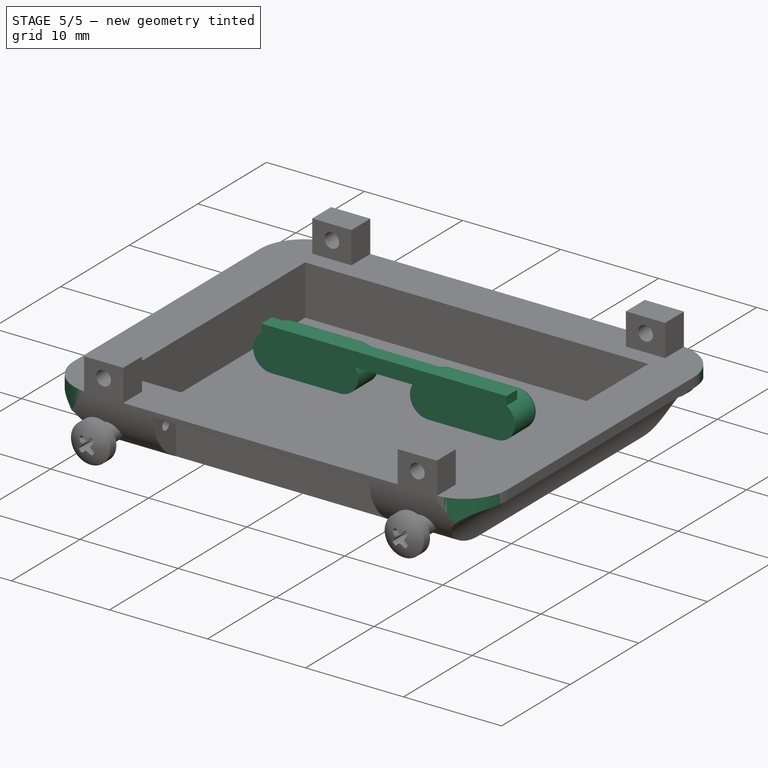
[diagram: stage 5 of 5 — iso view after this stage's code; geometry added in this stage tinted green]
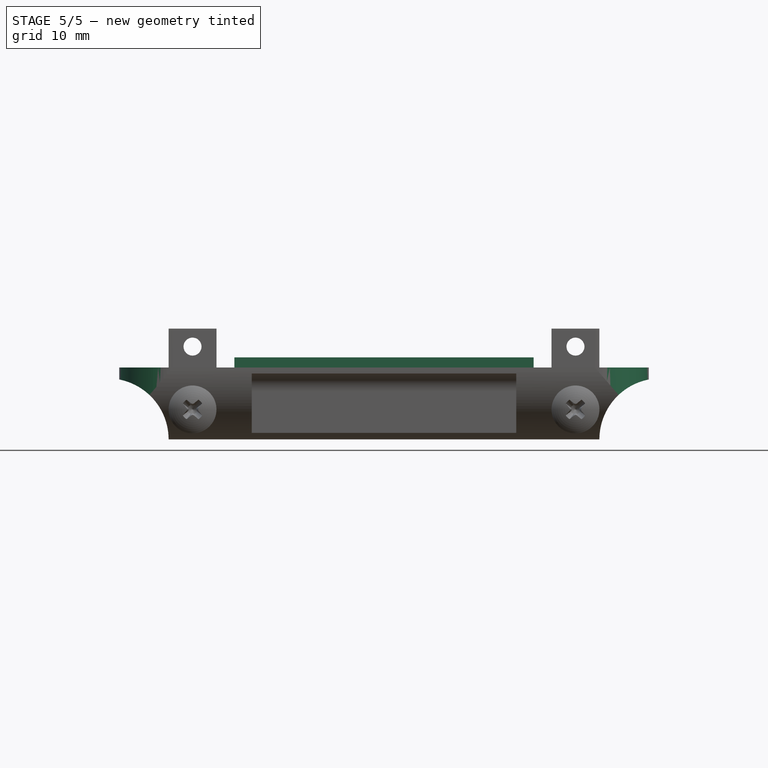
[diagram: stage 5 of 5 — front view after this stage's code; geometry added in this stage tinted green]
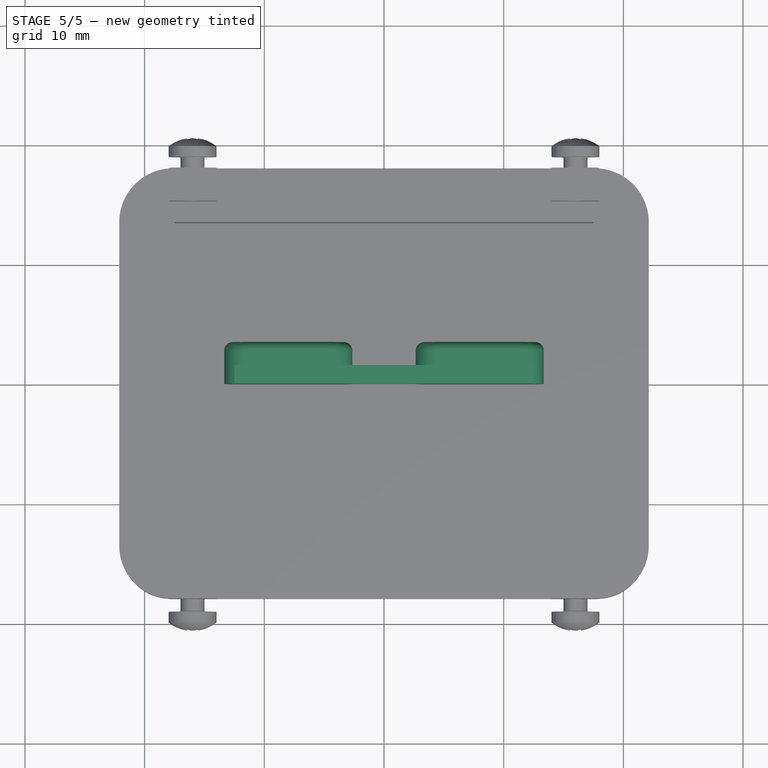
[diagram: stage 5 of 5 — top view after this stage's code; geometry added in this stage tinted green]
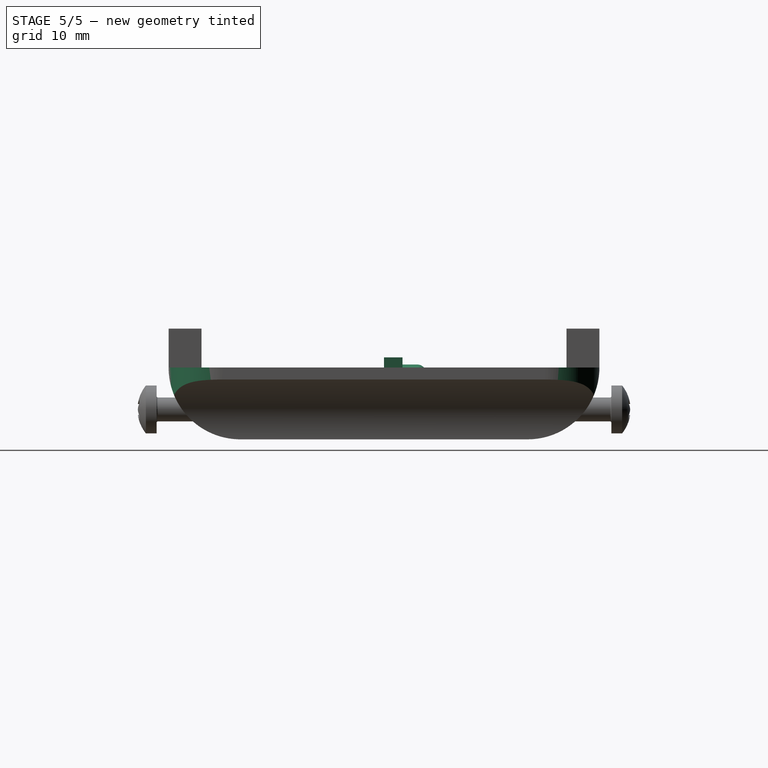
[diagram: stage 5 of 5 — right view after this stage's code; geometry added in this stage tinted green]
FEATURE [Sketcher::SketchObject] Sketch007
  FullyConstrained = true
  MapMode = 5
  Placement = pos=(0,0,0) rot=(1,0,0;1.5708rad)
  Support = -> [XZ_Plane006]
  sketch-geometry (4):
    g0: LineSegment StartX=-12.5 StartY=0.85 StartZ=0 EndX=12.5 EndY=0.85 EndZ=0
    g1: LineSegment StartX=12.5 StartY=0.85 StartZ=0 EndX=12.5 EndY=-0.65 EndZ=0
    g2: LineSegment StartX=12.5 StartY=-0.65 StartZ=0 EndX=-12.5 EndY=-0.65 EndZ=0
    g3: LineSegment StartX=-12.5 StartY=-0.65 StartZ=0 EndX=-12.5 EndY=0.85 EndZ=0
  constraints (11):
    c: Coincident(g0,g1)
    c: Coincident(g1,g2)
    c: Coincident(g2,g3)
    c: Coincident(g3,g0)
    c: Horizontal(g0)
    c: Vertical(g1)
    c: Vertical(g3)
    c: Symmetric(g1,g2,g-2)
    c: Distance(g3) = 1.5
    c: DistanceY(g-1,g0) = 0.85
    c: Distance(g0) = 25
FEATURE [PartDesign::SubShapeBinder] Binder
  BindCopyOnChange = 0
  BindMode = 0
  ClaimChildren = false
  Context = -> Part002 [Body001.Binder.]
  Fuse = false
  MakeFace = true
  Offset = -0.25
  OffsetFill = false
  OffsetIntersection = false
  OffsetJoinType = 0
  OffsetOpenResult = false
  PartialLoad = false
  Refine = true
  Relative = true
  Support = -> [Part[Body.Pocket005.Sketch006.]]
  _Version = 2
FEATURE [PartDesign::Pad] Pad001
  Direction = (0,-1,2e-16)
  Length = 1.55
  Length2 = 10
  Placement = pos=(0,0,0) rot=(1,0,0;1.5708rad)
  Profile = -> Sketch007
  ReferenceAxis = -> Sketch007 [N_Axis]
  Refine = true
  Reversed = true
  Type = 0
FEATURE [Sketcher::SketchObject] Sketch008
  ExternalGeometry = -> [Binder]
  FullyConstrained = true
  MapMode = 5
  Placement = pos=(0,0,0) rot=(1,0,0;1.5708rad)
  Support = -> [XZ_Plane006]
  sketch-geometry (4):
    g0: ArcOfCircle CenterX=-11.5 CenterY=-1.6 CenterZ=0 NormalX=0 NormalY=0 NormalZ=1 AngleXU=0 Radius=1.85 StartAngle=1.5708 EndAngle=4.71239
    g1: ArcOfCircle CenterX=-4.5 CenterY=-1.6 CenterZ=0 NormalX=0 NormalY=0 NormalZ=1 AngleXU=0 Radius=1.85 StartAngle=4.71239 EndAngle=7.85398
    g2: LineSegment StartX=-11.5 StartY=-3.45 StartZ=0 EndX=-4.5 EndY=-3.45 EndZ=0
    g3: LineSegment StartX=-4.5 StartY=0.25 StartZ=0 EndX=-11.5 EndY=0.25 EndZ=0
  constraints (8):
    c: Tangent(g0,g2) = -1.5708
    c: Tangent(g2,g1) = -1.5708
    c: Tangent(g1,g3) = -1.5708
    c: Tangent(g3,g0) = -1.5708
    c: Equal(g0,g1)
    c: Coincident(g0,g-6)
    c: Coincident(g1,g-4)
    c: Radius(g1) = 1.85
FEATURE [PartDesign::Pad] Pad002
  BaseFeature = -> Pad001
  Direction = (0,-1,-2e-16)
  Length = 3.5
  Length2 = 10
  Placement = pos=(0,0,0) rot=(1,0,0;1.5708rad)
  Profile = -> Sketch008
  ReferenceAxis = -> Sketch008 [N_Axis]
  Refine = true
  Reversed = true
  Type = 0
FEATURE [PartDesign::Mirrored] Mirrored001
  BaseFeature = -> Pad002
  MirrorPlane = -> Sketch008 [V_Axis]
  Originals = -> [Pad002]
  Placement = pos=(0,0,0) rot=(1,0,0;1.5708rad)
  Refine = true
FEATURE [Sketcher::SketchObject] Sketch009
  FullyConstrained = true
  MapMode = 5
  Placement = pos=(0,0,0) rot=(1,0,0;1.5708rad)
  Support = -> [XZ_Plane008]
  sketch-geometry (6):
    g0: LineSegment StartX=-22.125 StartY=0 StartZ=0 EndX=22.125 EndY=0 EndZ=0
    g1: LineSegment StartX=-22.125 StartY=0 StartZ=0 EndX=-22.125 EndY=-1 EndZ=0
    g2: LineSegment StartX=22.125 StartY=0 StartZ=0 EndX=22.125 EndY=-1 EndZ=0
    g3: LineSegment StartX=-18 StartY=-6 StartZ=0 EndX=18 EndY=-6 EndZ=0
    g4: ArcOfCircle CenterX=-23.0928 CenterY=-6 CenterZ=0 NormalX=0 NormalY=0 NormalZ=1 AngleXU=0 Radius=5.0928 StartAngle=0 EndAngle=1.3796
    g5: ArcOfCircle CenterX=23.0928 CenterY=-6 CenterZ=0 NormalX=0 NormalY=0 NormalZ=1 AngleXU=0 Radius=5.0928 StartAngle=1.76199 EndAngle=3.14159
  constraints (18):
    c: PointOnObject(g0,g-1)
    c: Symmetric(g0,g0,g-2)
    c: Distance(g0) = 44.25
    c: Coincident(g1,g0)
    c: Vertical(g1)
    c: Coincident(g2,g0)
    c: Vertical(g2)
    c: Equal(g1,g2)
    c: Distance(g1) = 1
    c: Symmetric(g3,g3,g-2)
    c: Distance(g3) = 36
    c: DistanceY(g3,g0) = 6
    c: Coincident(g4,g1)
    c: Coincident(g4,g3)
    c: Coincident(g5,g2)
    c: Coincident(g5,g3)
    c: Horizontal(g5,g3)
    c: Horizontal(g4,g3)
FEATURE [PartDesign::Fillet] Fillet002
  Base = -> Mirrored001 [Face15,Face13]
  BaseFeature = -> Mirrored001
  Placement = pos=(0,0,0) rot=(1,0,0;1.5708rad)
  Radius = 0.7
  Refine = true
  SupportTransform = false
  UseAllEdges = false
FEATURE [PartDesign::Pocket] Pocket013
  BaseFeature = -> MultiTransform
  Direction = (0,0,-1)
  Length = 5
  Length2 = 5
  Midplane = true
  Placement = pos=(0,0,0) rot=(1,0,0;1.5708rad)
  Profile = -> Sketch010
  ReferenceAxis = -> Sketch010 [N_Axis]
  Refine = true
  Type = 1
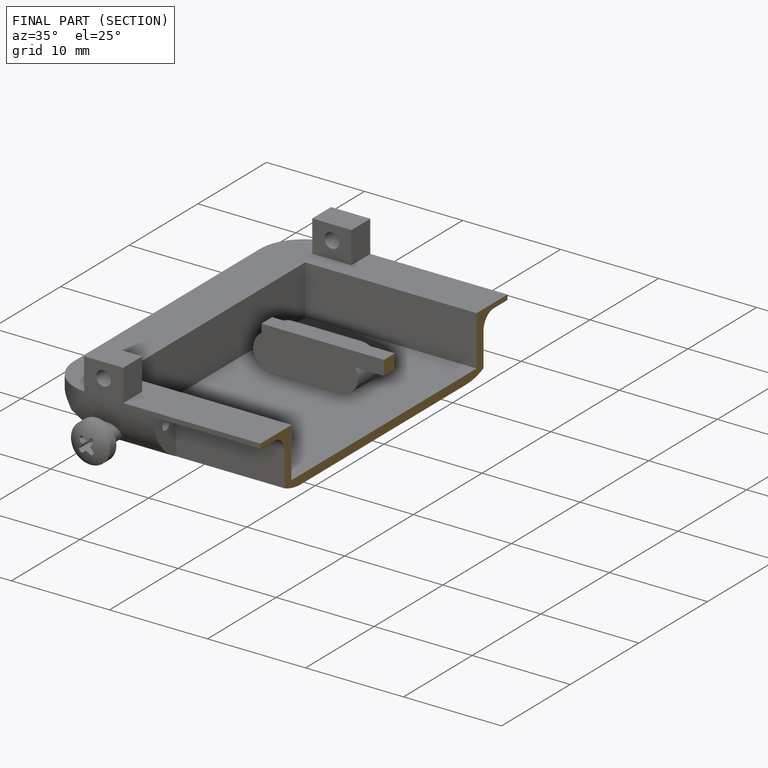
[diagram: finished part — half-section view (interior)]
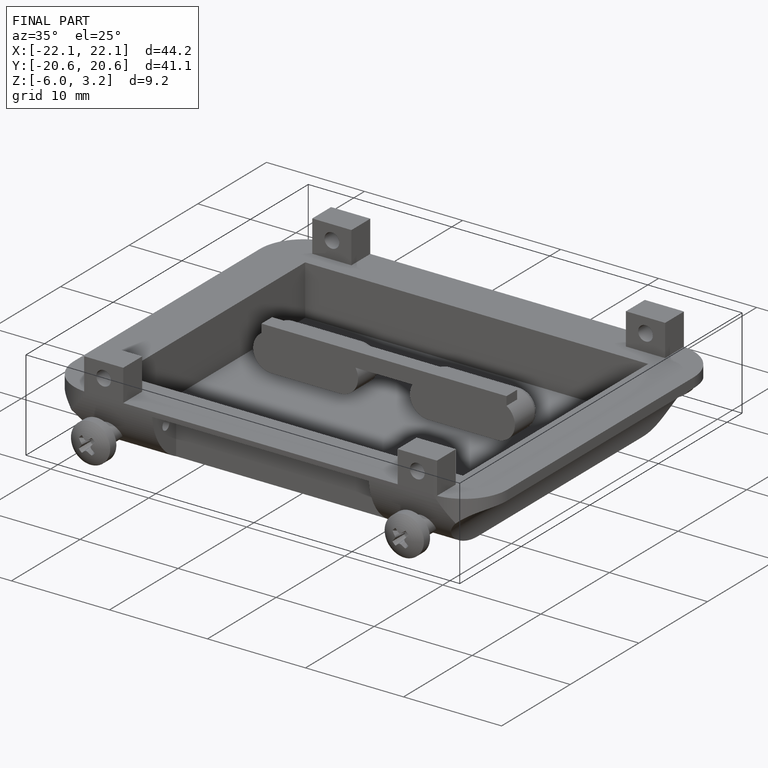
[diagram: finished part — iso view with bounding-box wireframe]
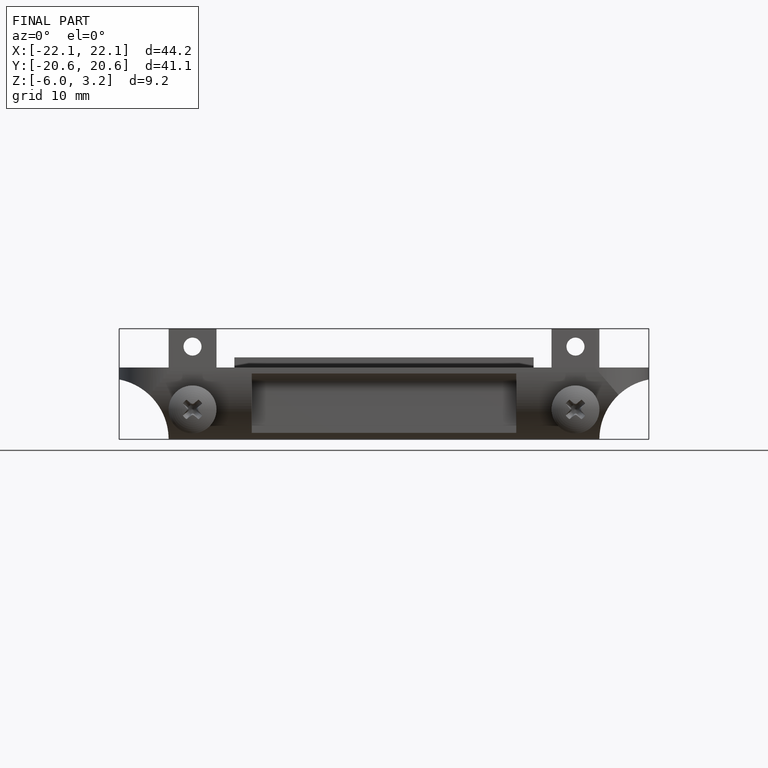
[diagram: finished part — front view with bounding-box wireframe]
